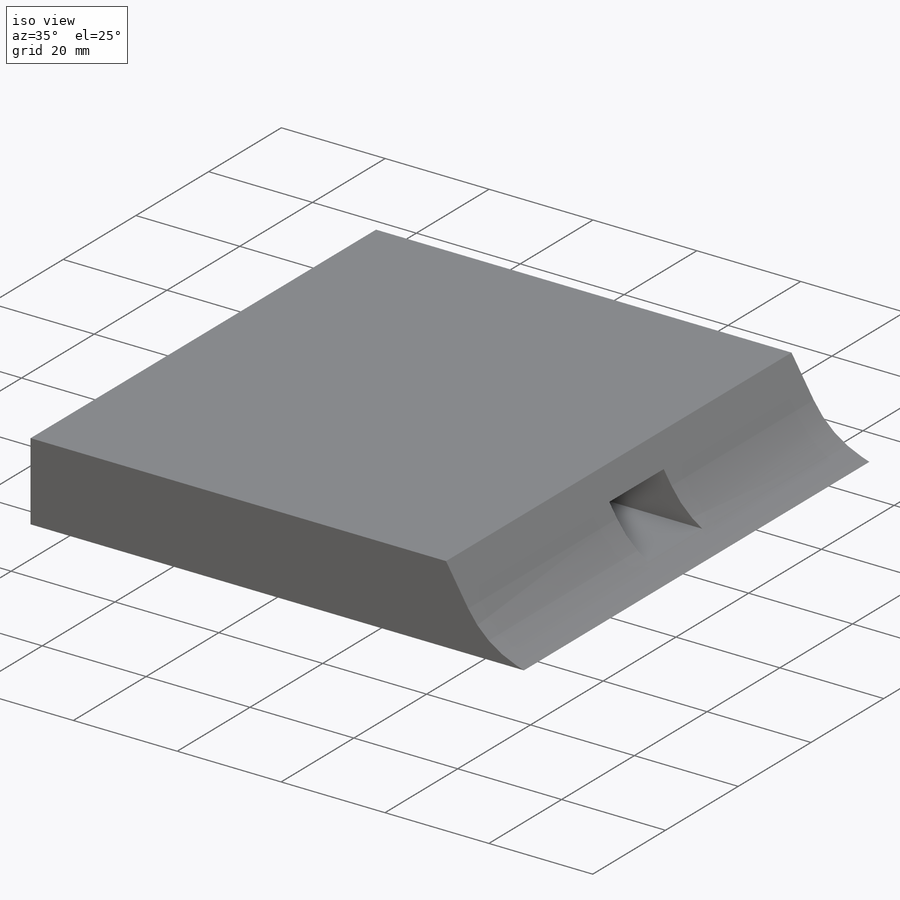
[diagram: iso view]
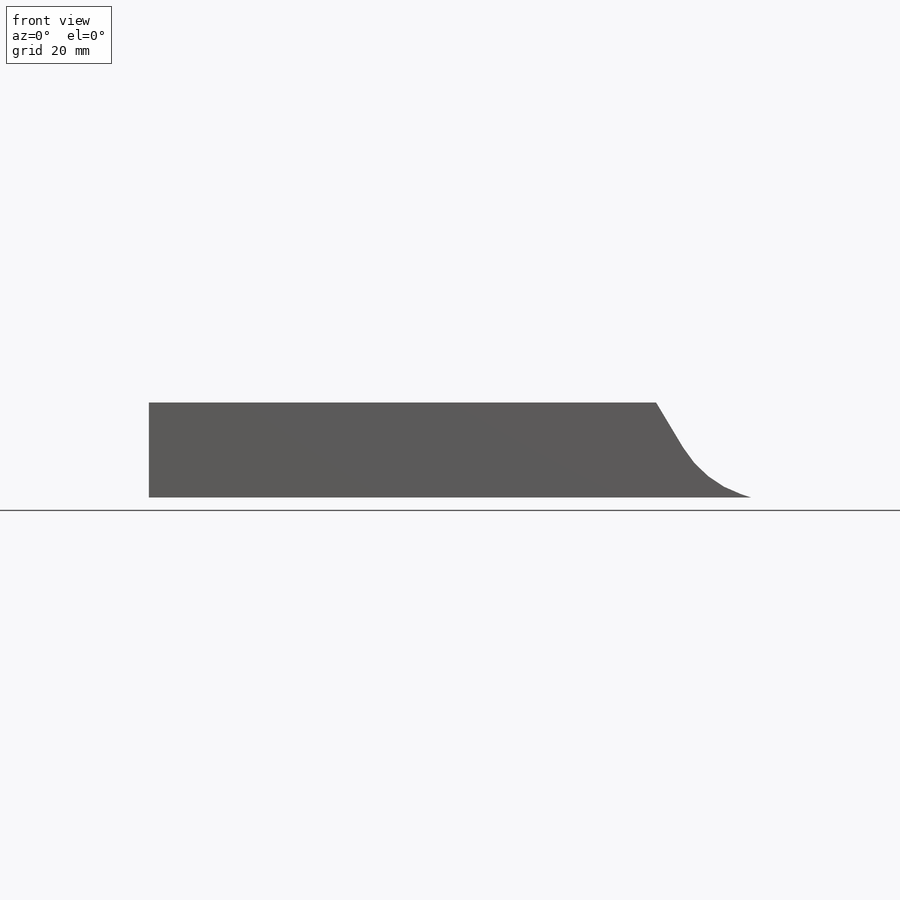
[diagram: front view]
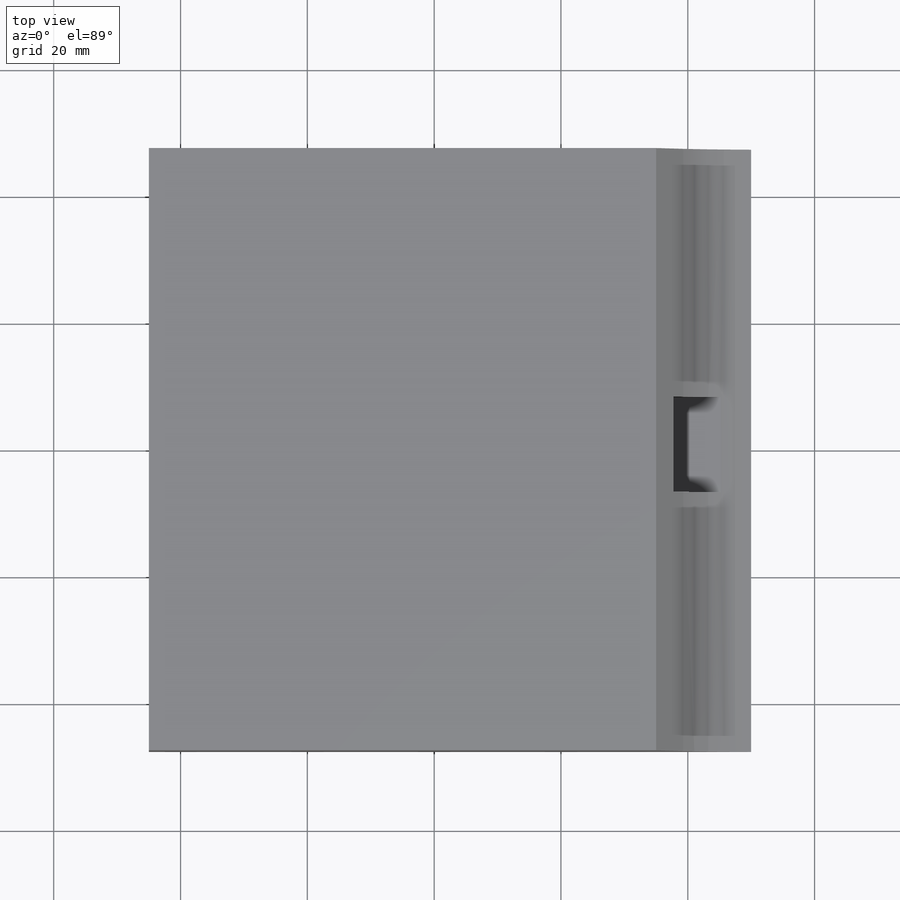
[diagram: top view]
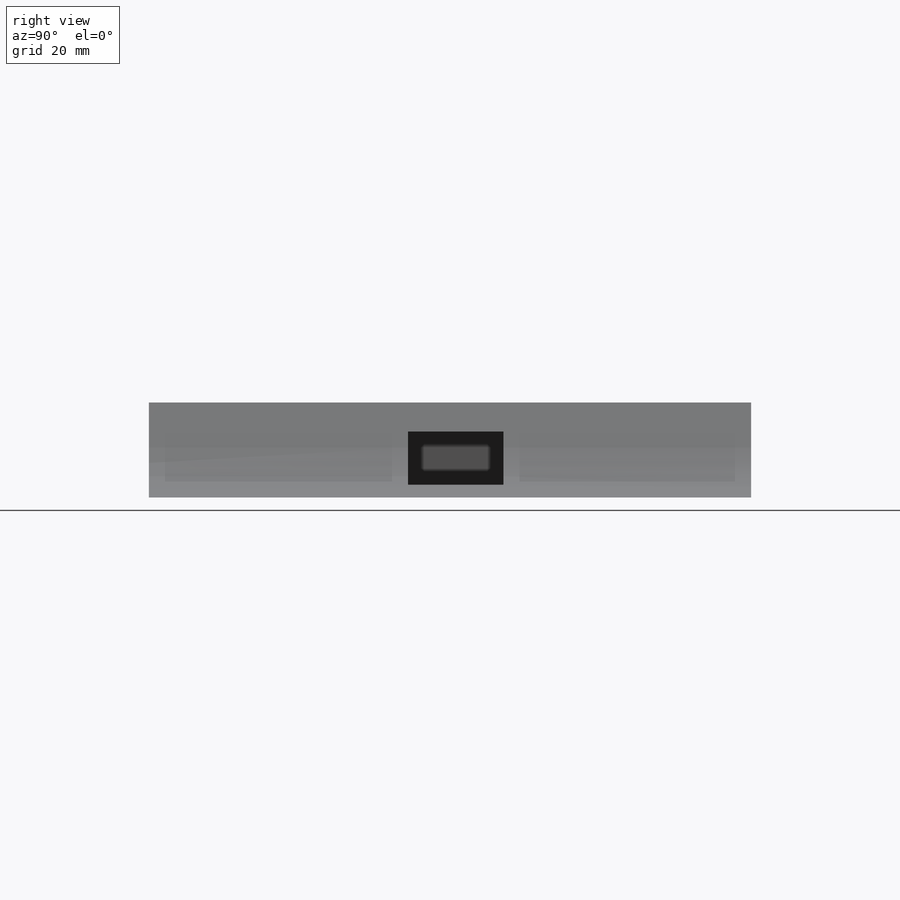
[diagram: right view]
SOLIDWORKS PART (.sldprt)
format: sldprt  version: not decoded by parser v0  size: 147,968 bytes
history: native  units: mm
features: sketch x4, extrude x2, cut_extrude x2, material x1, fillet x1 (+12 scaffold rows collapsed)
feature tree (22):
  scaffold x12  (default folders/planes/origin — collapsed)
  material  "Material <not specified>"
  sketch  "Sketch1"  dims[D1=95.0mm D2=90.0mm]
  extrude  "Boss-Extrude3"  Depth=15mm
  sketch  "Sketch5"  dims[D1=15.0mm D2=8.4mm D3=2.0mm]
  cut_extrude  "Cut-Extrude3"  Depth=40mm
  sketch  "Sketch7"
  extrude  "Boss-Extrude4"  Depth=5mm
  sketch  "Sketch8"  dims[D1=15.0mm D2=7.5mm D3=2.5mm]
  cut_extrude  "Cut-Extrude4"  Depth=100mm
  fillet  "Fillet6"  Radius=17mm
decode coverage: 8 of 9 modeling features carry decoded parameters
note: suppression state not decoded; provenance and decode notes live in map.json
